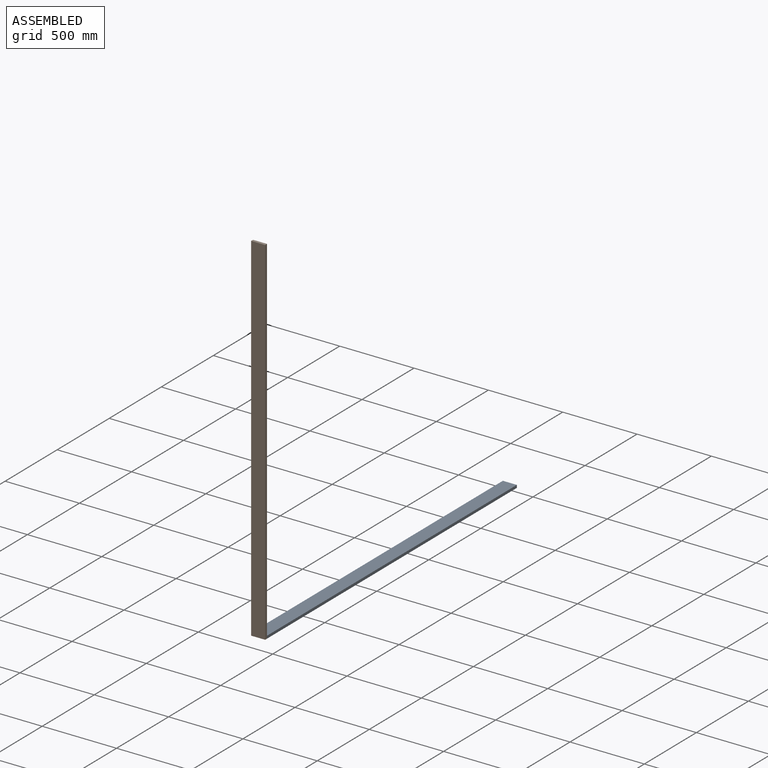
[diagram: assembled view]
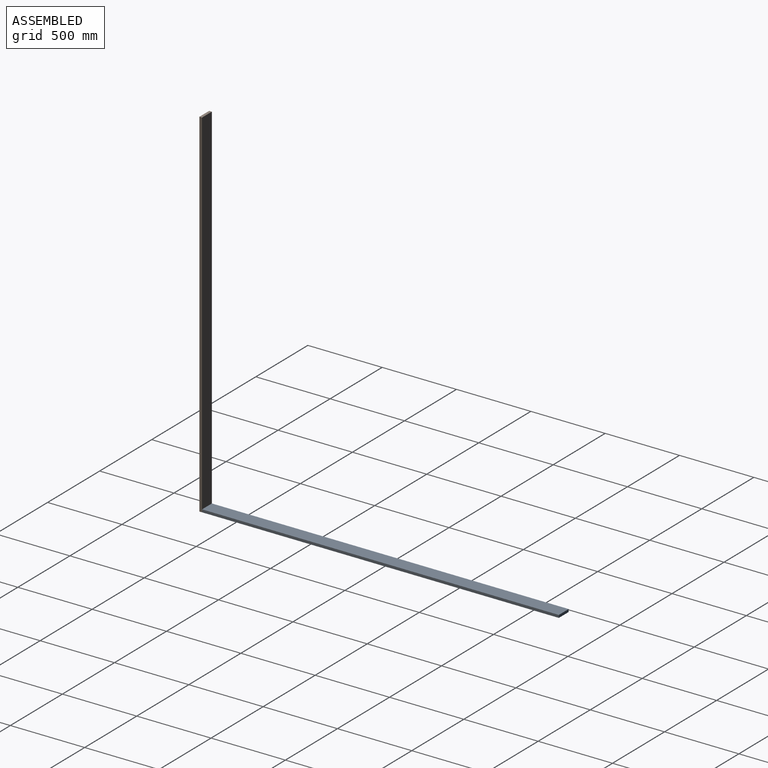
[diagram: assembled view, second angle]
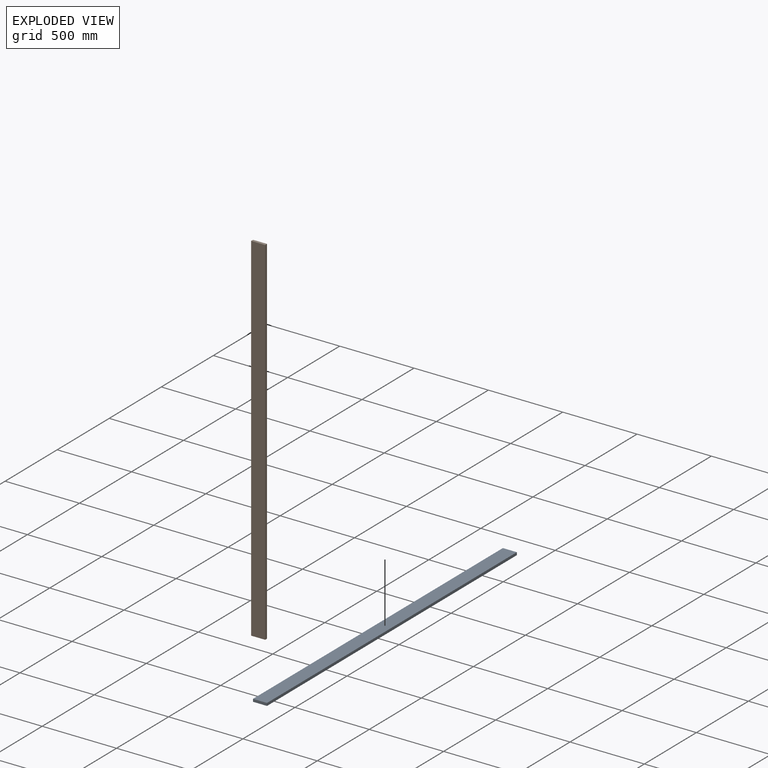
[diagram: exploded view]
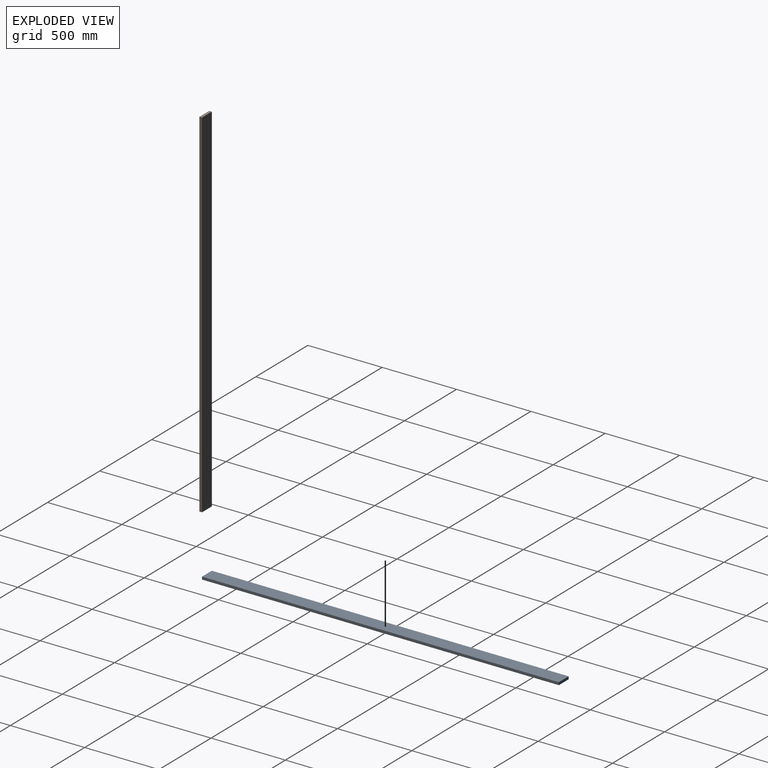
[diagram: exploded view, second angle]
ASSEMBLY  parts=2 mates=3
PART A: 6 faces, bbox 94x2400x18 mm
  f0: plane 2400x18mm, normal (-1,0,0), area 43200mm2, adj f1,f3,f4,f5
  f1: plane 94x18mm, normal (0,-1,0), area 1692mm2, adj f0,f2,f4,f5
  f2: plane 2400x18mm, normal (1,0,0), area 43200mm2, adj f1,f3,f4,f5
  f3: plane 94x18mm, normal (0,1,0), area 1692mm2, adj f0,f2,f4,f5
  f4: plane 2400x94mm, normal (0,0,1), area 225600mm2, adj f0,f1,f2,f3
  f5: plane 2400x94mm, normal (0,0,-1), area 225600mm2, adj f0,f1,f2,f3
PART B: same geometry as A
PLACE A t=(425.91,-662.57,469)mm fixed
PLACE B rot(axis=(1,0,0),90deg) t=(425.91,-662.57,469)mm
MATE planar B.f1 <-> A.f5  axis (0,0,-1) through (378.91,-671.57,469)mm
MATE planar A.f0 <-> B.f0  axis (-1,0,0) through (331.91,537.43,478)mm
MATE planar A.f1 <-> B.f5  axis (0,-1,0) through (425.91,-662.57,478)mm
